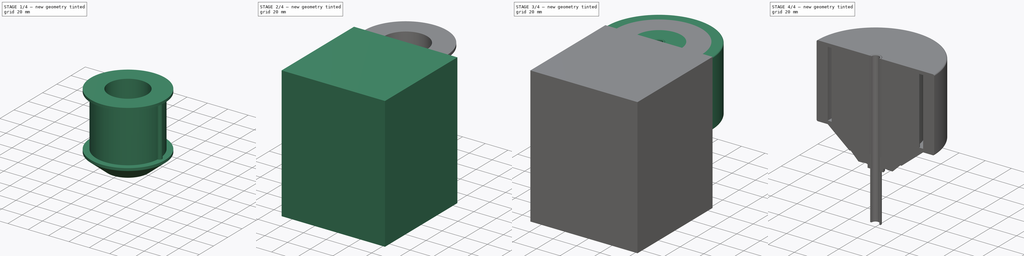
[diagram: build sequence overview — one tinted view per stage of 4, left to right]
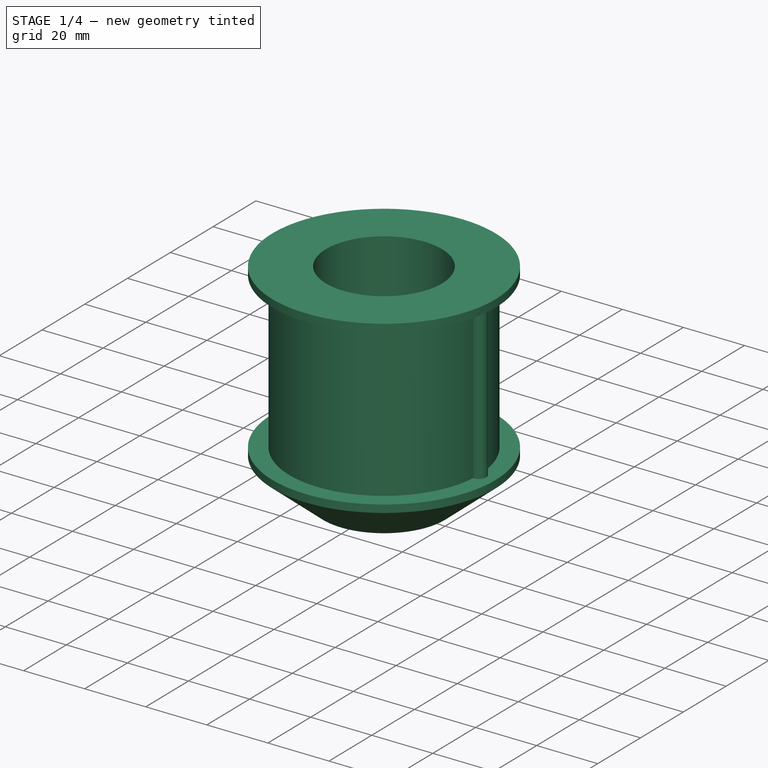
[diagram: stage 1 of 4 — iso view after this stage's code; geometry added in this stage tinted green]
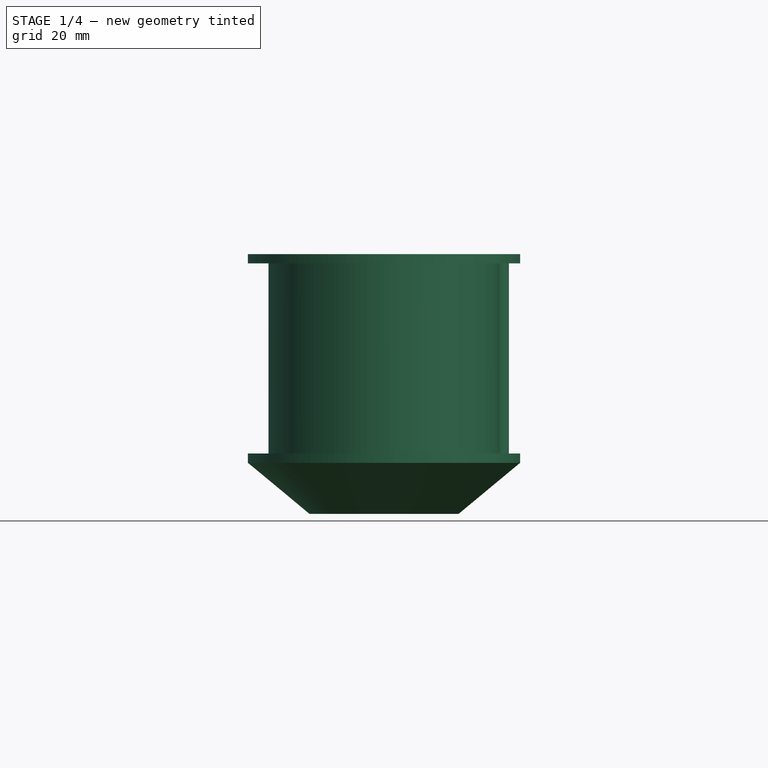
[diagram: stage 1 of 4 — front view after this stage's code; geometry added in this stage tinted green]
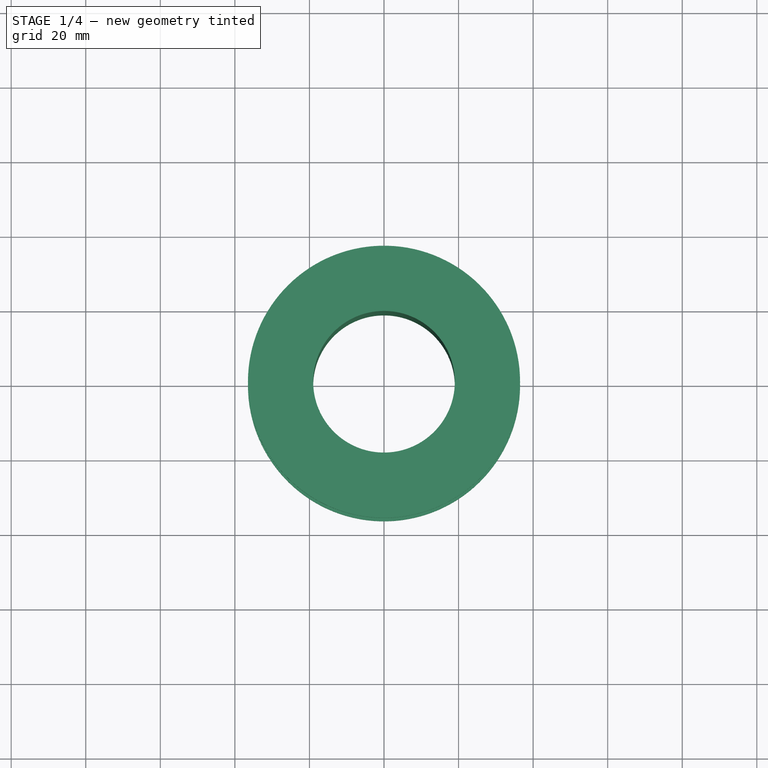
[diagram: stage 1 of 4 — top view after this stage's code; geometry added in this stage tinted green]
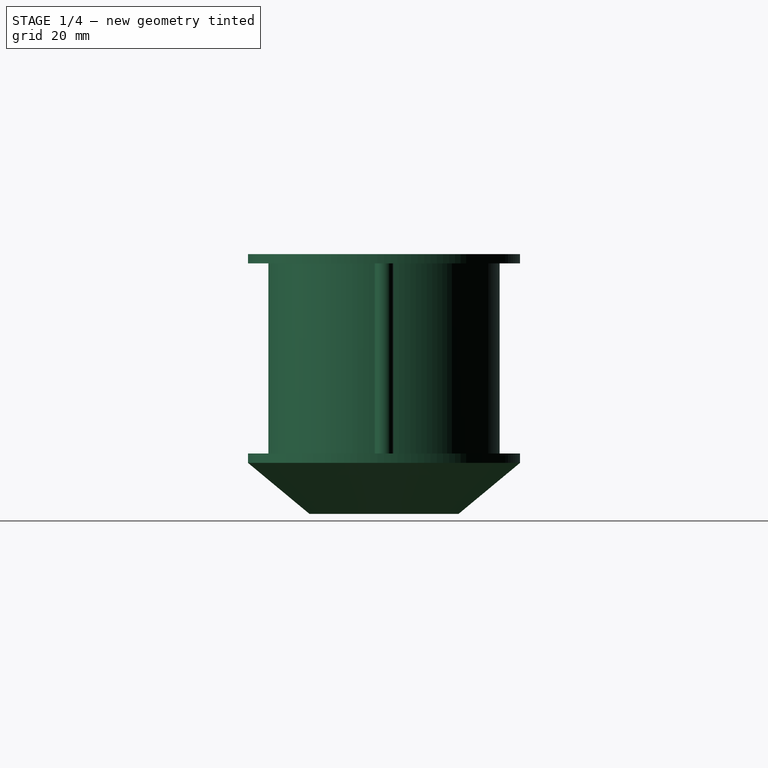
[diagram: stage 1 of 4 — right view after this stage's code; geometry added in this stage tinted green]
FCSTD DOCUMENT  (FreeCAD 0.22R37898 (Git))
Label: skateboard motor
License: All rights reserved
LicenseURL: http://en.wikipedia.org/wiki/All_rights_reserved
objects: Sketcher::SketchObject×5, App::Link×5, PartDesign::Revolution×4, PartDesign::Body×4, App::FeaturePython×1, Part::Feature×1, Part::FeaturePython×1, Part::Box×1, Part::Cut×1, PartDesign::Pad×1, PartDesign::PolarPattern×1
note: 24 computed .brp shape members not serialized (recipe doc carries the construction recipe); baked Part::Feature solids carry a one-line shape summary decoded from their .brp

FEATURE [PartDesign::Body] Body001  label="Stator"
  AllowCompound = false
  Group = -> [Sketch001,Revolution001]
  Origin = -> Origin001
  Tip = -> Revolution001
FEATURE [PartDesign::Revolution] Revolution002
  Angle = 360
  Angle2 = 60
  Axis = (0,2e-16,1)
  Base = (0,0,0)
  Placement = pos=(0,0,0) rot=(1,0,0;1.5708rad)
  Profile = -> Sketch
  ReferenceAxis = -> Sketch [V_Axis]
  Reversed = true
  Suppressed = false
  Type = 0
FEATURE [Sketcher::SketchObject] Sketch004
  AttachmentOffset = pos=(0,0,75.5) rot=(0,0,1;0rad)
  AttachmentSupport = -> [XY_Plane002]
  FullyConstrained = true
  MapMode = 5
  Placement = pos=(0,0,75.5) rot=(0,0,1;0rad)
  expr: .AttachmentOffset.Base.z = dd.Thickness
  expr: Constraints[3] = dd.WheelInnerDiameter / 2 - 5.5 mm
  sketch-geometry (2):
    g0: ArcOfCircle CenterX=0 CenterY=0 CenterZ=0 NormalX=0 NormalY=0 NormalZ=1 AngleXU=0 Radius=31 StartAngle=6.20252 EndAngle=6.36385
    g1: ArcOfCircle CenterX=31 CenterY=0 CenterZ=0 NormalX=0 NormalY=0 NormalZ=1 AngleXU=0 Radius=2.5 StartAngle=4.67206 EndAngle=7.89432
  constraints (7):
    c: Coincident(g0,g-1)
    c: Coincident(g0,g1)
    c: Coincident(g1,g0)
    c: Radius(g0) = 31
    c: Radius(g1) = 2.5
    c: PointOnObject(g1,g0)
    c: PointOnObject(g1,g-1)
FEATURE [PartDesign::Pad] Pad
  BaseFeature = -> Revolution002
  Direction = (0,0,1)
  Length = 56
  Length2 = 10
  Placement = pos=(0,0,0) rot=(1,0,0;1.5708rad)
  Profile = -> Sketch004
  ReferenceAxis = -> Sketch004 [N_Axis]
  Reversed = true
  Suppressed = false
  Type = 0
  expr: Length = dd.WheelWidth
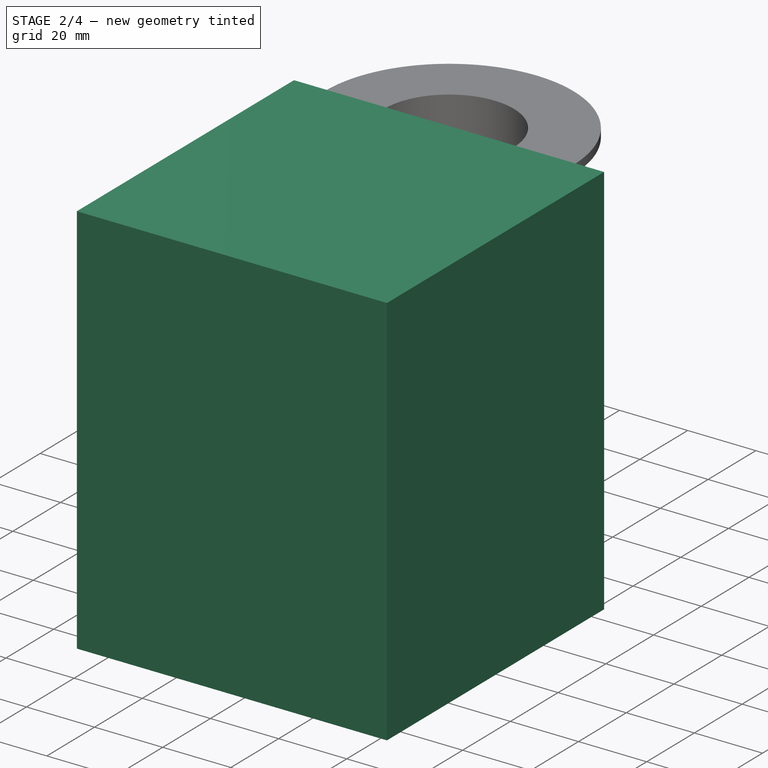
[diagram: stage 2 of 4 — iso view after this stage's code; geometry added in this stage tinted green]
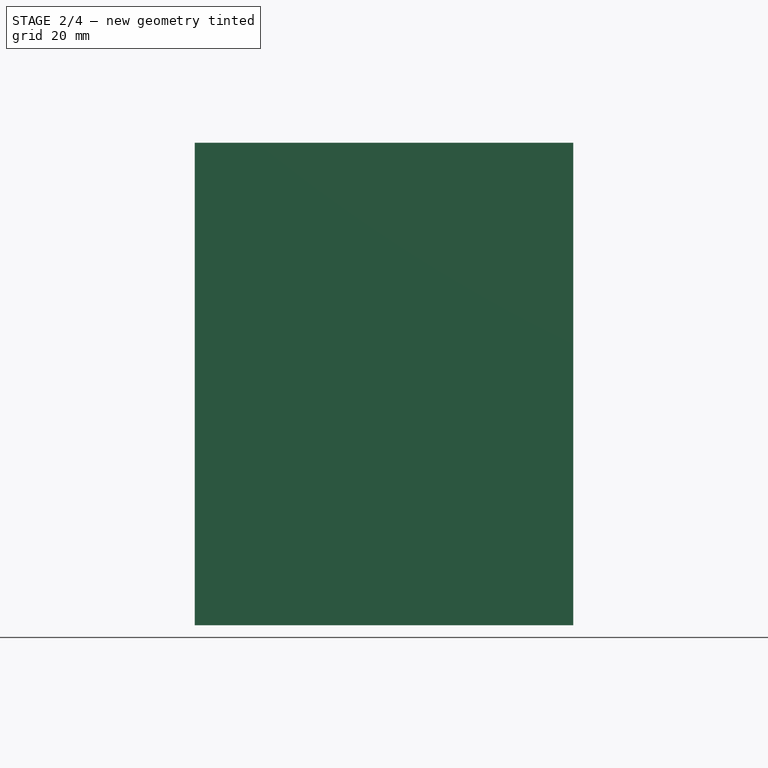
[diagram: stage 2 of 4 — front view after this stage's code; geometry added in this stage tinted green]
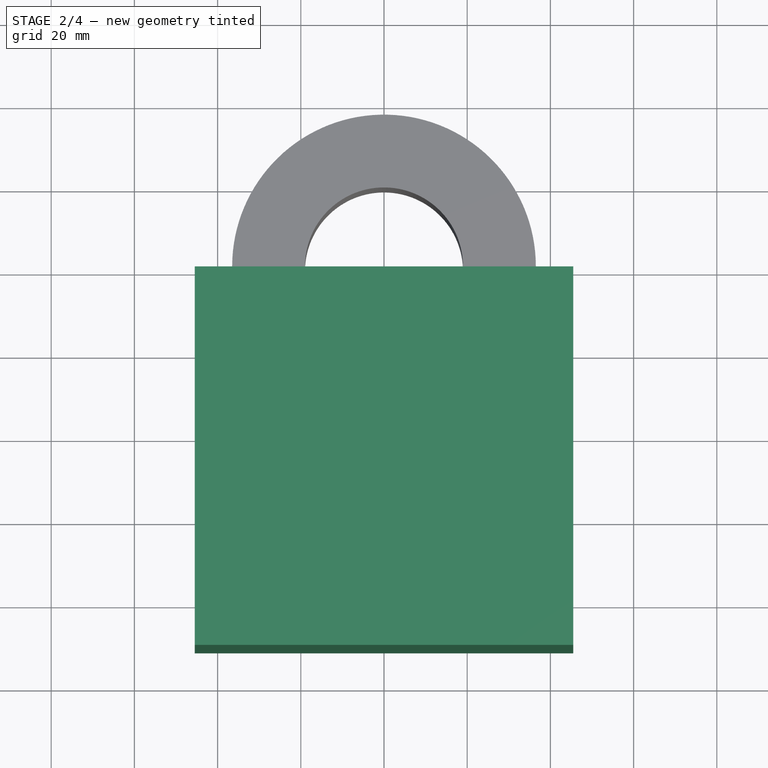
[diagram: stage 2 of 4 — top view after this stage's code; geometry added in this stage tinted green]
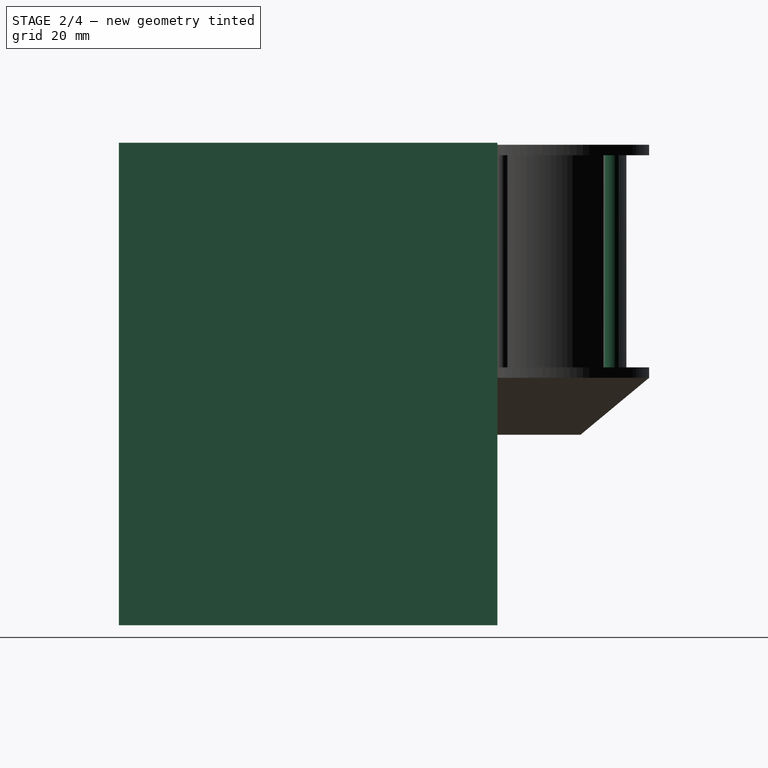
[diagram: stage 2 of 4 — right view after this stage's code; geometry added in this stage tinted green]
FEATURE [Part::Box] SectionCutBoxY
  AttacherType = Attacher::AttachEngine3D
  Height = 116
  Length = 91
  Placement = pos=(-45.5,-91,-40) rot=(0,0,1;0rad)
  Width = 91
FEATURE [PartDesign::PolarPattern] PolarPattern
  Angle = 360
  Axis = -> Sketch004 [N_Axis]
  BaseFeature = -> Pad
  Mode = 0
  Occurrences = 6
  Offset = 120
  Originals = -> [Pad]
  Placement = pos=(0,0,0) rot=(1,0,0;1.5708rad)
  Suppressed = false
  TransformMode = 0
FEATURE [PartDesign::Body] Body002  label="Outer"
  AllowCompound = false
  Group = -> [Sketch,Revolution002,Sketch004,Pad,PolarPattern]
  Origin = -> Origin002
  Tip = -> PolarPattern
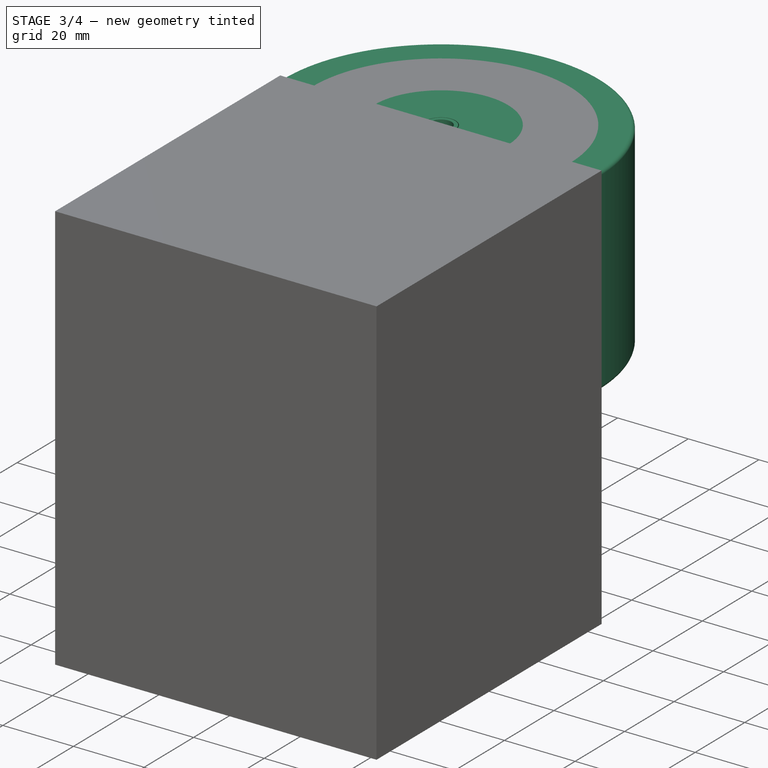
[diagram: stage 3 of 4 — iso view after this stage's code; geometry added in this stage tinted green]
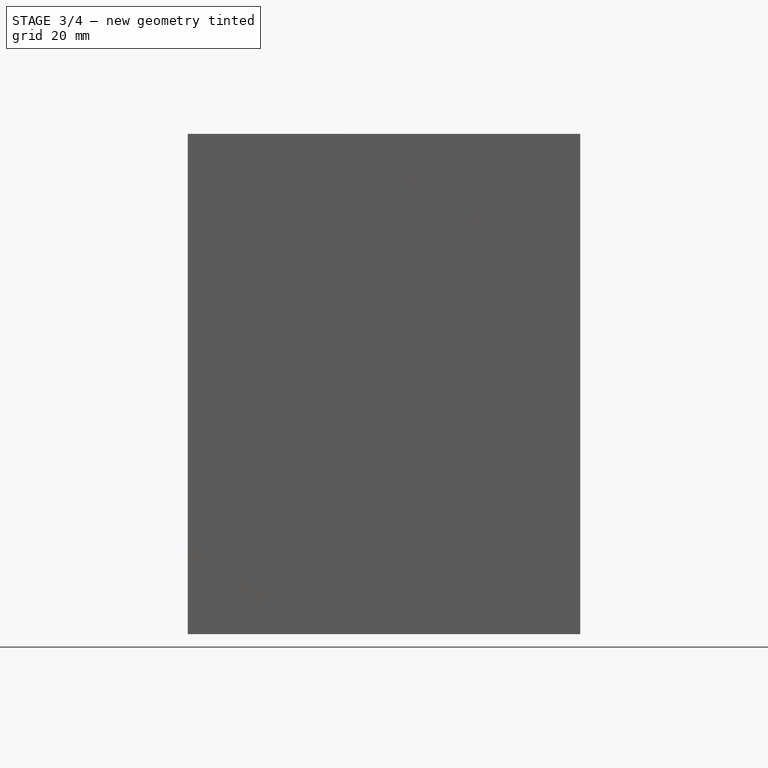
[diagram: stage 3 of 4 — front view after this stage's code; geometry added in this stage tinted green]
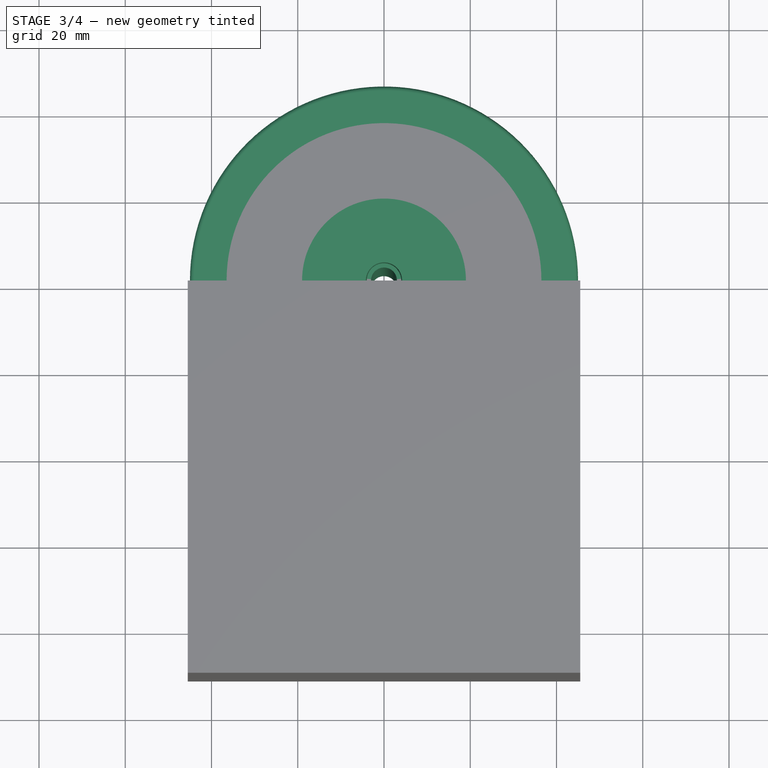
[diagram: stage 3 of 4 — top view after this stage's code; geometry added in this stage tinted green]
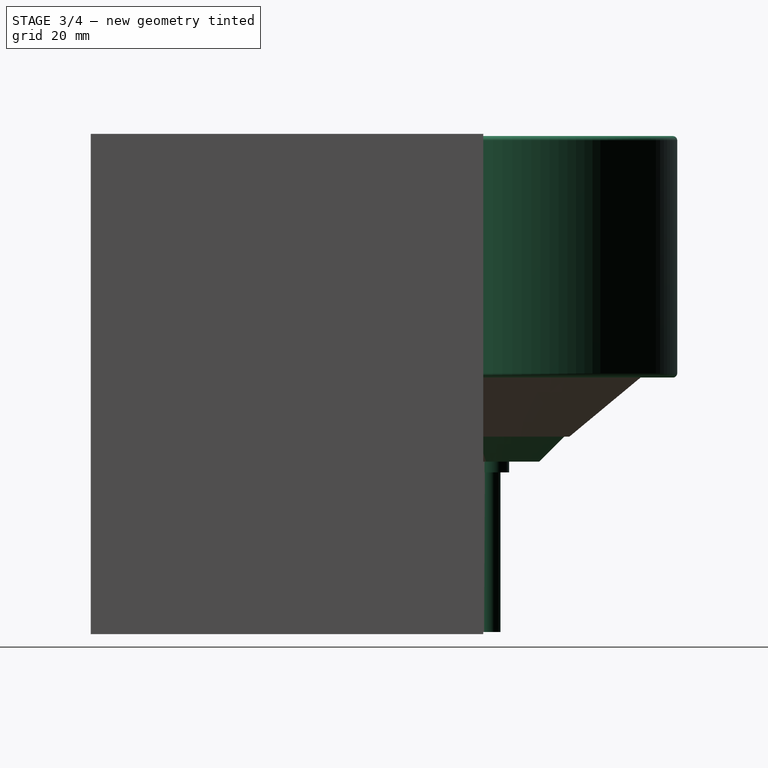
[diagram: stage 3 of 4 — right view after this stage's code; geometry added in this stage tinted green]
FEATURE [Sketcher::SketchObject] Sketch
  AttachmentSupport = -> [XZ_Plane002]
  FullyConstrained = true
  MapMode = 5
  Placement = pos=(0,0,0) rot=(1,0,0;1.5708rad)
  expr: Constraints[13] = dd.BearingDiameter / 2 + 2 mm
  expr: Constraints[5] = dd.Thickness
  expr: Constraints[6] = dd.StatorDiameter / 2
  expr: Constraints[8] = dd.WheelWidth
  expr: Constraints[9] = dd.WheelInnerDiameter / 2
  sketch-geometry (10):
    g0: LineSegment StartX=19 StartY=5.80851 StartZ=0 EndX=19 EndY=75.5 EndZ=0
    g1: LineSegment StartX=19 StartY=75.5 StartZ=0 EndX=36.5 EndY=75.5 EndZ=0
    g2: LineSegment StartX=36.5 StartY=19.5 StartZ=0 EndX=20 EndY=5.80851 EndZ=0
    g3: LineSegment StartX=20 StartY=5.80851 StartZ=0 EndX=19 EndY=5.80851 EndZ=0
    g4: LineSegment StartX=20 StartY=5.80851 StartZ=0 EndX=13 EndY=0 EndZ=0
    g5: LineSegment StartX=36.5 StartY=19.5 StartZ=0 EndX=36.5 EndY=22 EndZ=0
    g6: LineSegment StartX=36.5 StartY=22 StartZ=0 EndX=31 EndY=22 EndZ=0
    g7: LineSegment StartX=31 StartY=22 StartZ=0 EndX=31 EndY=73 EndZ=0
    g8: LineSegment StartX=31 StartY=73 StartZ=0 EndX=36.5 EndY=73 EndZ=0
    g9: LineSegment StartX=36.5 StartY=73 StartZ=0 EndX=36.5 EndY=75.5 EndZ=0
  constraints (29):
    c: Vertical(g0)
    c: Coincident(g0,g1)
    c: Horizontal(g1)
    c: Coincident(g2,g3)
    c: Coincident(g3,g0)
    c: DistanceY(g-1,g0) = 75.5
    c: DistanceX(g-1,g0) = 19
    c: Horizontal(g3)
    c: DistanceY(g2,g1) = 56
    c: DistanceX(g-1,g2) = 36.5
    c: DistanceX(g3,g3) = 1
    c: Tangent(g4,g2) = -1.5708
    c: PointOnObject(g4,g-1)
    c: DistanceX(g-1,g4) = 13
    c: Coincident(g5,g2)
    c: Vertical(g5)
    c: Coincident(g6,g5)
    c: Horizontal(g6)
    c: Coincident(g7,g6)
    c: Vertical(g7)
    c: Coincident(g8,g7)
    c: Horizontal(g8)
    c: Coincident(g9,g8)
    c: Coincident(g9,g1)
    c: Vertical(g9)
    c: DistanceX(g6,g6) = 5.5
    c: Equal(g9,g5)
    c: DistanceY(g9,g9) = 2.5
    c: Vertical(g8,g5)
FEATURE [Sketcher::SketchObject] Sketch001
  AttachmentSupport = -> [XZ_Plane001]
  FullyConstrained = true
  MapMode = 5
  Placement = pos=(0,0,0) rot=(1,0,0;1.5708rad)
  expr: Constraints[14] = dd.BearingDiameter / 2
  expr: Constraints[15] = dd.AxisDiameter / 2 + 0.2 mm
  expr: Constraints[16] = dd.Thickness
  expr: Constraints[17] = dd.StatorDiameter / 2
  sketch-geometry (7):
    g0: LineSegment StartX=19 StartY=75.5 StartZ=0 EndX=19 EndY=6 EndZ=0
    g1: LineSegment StartX=19 StartY=6 StartZ=0 EndX=13 EndY=0 EndZ=0
    g2: LineSegment StartX=13 StartY=0 StartZ=0 EndX=11 EndY=0 EndZ=0
    g3: LineSegment StartX=11 StartY=0 StartZ=0 EndX=11 EndY=6 EndZ=0
    g4: LineSegment StartX=11 StartY=6 StartZ=0 EndX=4.2 EndY=6 EndZ=0
    g5: LineSegment StartX=4.2 StartY=6 StartZ=0 EndX=4.2 EndY=75.5 EndZ=0
    g6: LineSegment StartX=4.2 StartY=75.5 StartZ=0 EndX=19 EndY=75.5 EndZ=0
  constraints (21):
    c: Vertical(g0)
    c: Coincident(g0,g1)
    c: Coincident(g1,g2)
    c: Coincident(g2,g3)
    c: Vertical(g3)
    c: Coincident(g3,g4)
    c: Horizontal(g4)
    c: Coincident(g4,g5)
    c: Vertical(g5)
    c: Coincident(g5,g6)
    c: Coincident(g6,g0)
    c: Horizontal(g6)
    c: Horizontal(g2)
    c: PointOnObject(g1,g-1)
    c: DistanceX(g-1,g2) = 11
    c: DistanceX(g-1,g4) = 4.2
    c: DistanceY(g2,g5) = 75.5
    c: DistanceX(g-1,g0) = 19
    c: DistanceY(g3,g3) = 6
    c: DistanceX(g2,g2) = 2
    c: Angle(g1,g3) = 0.785398
FEATURE [Sketcher::SketchObject] Sketch002  label="Axis sketch"
  AttachmentSupport = -> [XZ_Plane]
  FullyConstrained = true
  MapMode = 5
  Placement = pos=(0,0,0) rot=(1,0,0;1.5708rad)
  expr: Constraints[21] = dd.Thickness
  expr: Constraints[22] = dd.AxisStickout
  expr: Constraints[5] = dd.AxisDiameter / 2
  sketch-geometry (8):
    g0: LineSegment StartX=4 StartY=75.5 StartZ=0 EndX=3 EndY=75.5 EndZ=0
    g1: LineSegment StartX=3 StartY=75.5 StartZ=0 EndX=3 EndY=-39.5 EndZ=0
    g2: LineSegment StartX=3 StartY=-39.5 StartZ=0 EndX=4 EndY=-39.5 EndZ=0
    g3: LineSegment StartX=4 StartY=75.5 StartZ=0 EndX=4 EndY=0 EndZ=0
    g4: LineSegment StartX=4 StartY=0 StartZ=0 EndX=6 EndY=0 EndZ=0
    g5: LineSegment StartX=6 StartY=0 StartZ=0 EndX=6 EndY=-2.5 EndZ=0
    g6: LineSegment StartX=6 StartY=-2.5 StartZ=0 EndX=4 EndY=-2.5 EndZ=0
    g7: LineSegment StartX=4 StartY=-2.5 StartZ=0 EndX=4 EndY=-39.5 EndZ=0
  constraints (24):
    c: Coincident(g0,g1)
    c: Vertical(g1)
    c: Coincident(g1,g2)
    c: Horizontal(g2)
    c: Horizontal(g0)
    c: DistanceX(g-1,g2) = 4
    c: Coincident(g0,g3)
    c: Vertical(g3)
    c: Coincident(g3,g4)
    c: Horizontal(g4)
    c: Coincident(g4,g5)
    c: Coincident(g5,g6)
    c: Coincident(g6,g7)
    c: Coincident(g7,g2)
    c: Vertical(g7)
    c: Horizontal(g6)
    c: Equal(g4,g6)
    c: DistanceY(g5,g5) = 2.5
    c: PointOnObject(g3,g-1)
    c: Vertical(g5)
    c: DistanceX(g-1,g4) = 6
    c: DistanceY(g3,g3) = 75.5
    c: DistanceY(g2,g4) = 39.5
    c: DistanceX(g-1,g1) = 3
FEATURE [PartDesign::Revolution] Revolution  label="Axis revolution"
  Angle = 360
  Angle2 = 60
  Axis = (0,2e-16,1)
  Base = (0,0,0)
  Placement = pos=(0,0,0) rot=(1,0,0;1.5708rad)
  Profile = -> Sketch002
  ReferenceAxis = -> Sketch002 [V_Axis]
  Reversed = true
  Suppressed = false
  Type = 0
FEATURE [PartDesign::Body] Body  label="Axis"
  AllowCompound = false
  Group = -> [Sketch002,Revolution]
  Origin = -> Origin
  Tip = -> Revolution
FEATURE [App::FeaturePython] dd  # WARN: FeaturePython — macro-defined, semantics opaque (R4)
  AxisDiameter = 8
  AxisStickout = 39.5
  BearingDiameter = 22
  DynamicData = Created with DynamicData (v2.62) workbench. | This is a simple container object built | for holding custom properties.
  StatorDiameter = 38
  Thickness = 75.5
  WheelDiameter = 90
  WheelInnerDiameter = 73
  WheelWidth = 56
FEATURE [PartDesign::Revolution] Revolution001
  Angle = 360
  Angle2 = 60
  Axis = (0,2e-16,1)
  Base = (0,0,0)
  Placement = pos=(0,0,0) rot=(1,0,0;1.5708rad)
  Profile = -> Sketch001
  ReferenceAxis = -> Sketch001 [V_Axis]
  Reversed = true
  Suppressed = false
  Type = 0
FEATURE [Sketcher::SketchObject] Sketch003
  AttachmentSupport = -> [XZ_Plane003]
  FullyConstrained = true
  MapMode = 5
  Placement = pos=(0,0,0) rot=(1,0,0;1.5708rad)
  expr: Constraints[6] = dd.WheelInnerDiameter / 2
  expr: Constraints[7] = dd.WheelDiameter / 2
  expr: Constraints[8] = dd.WheelWidth
  expr: Constraints[9] = dd.Thickness
  sketch-geometry (8):
    g0: LineSegment StartX=36.5 StartY=75.5 StartZ=0 EndX=36.5 EndY=19.5 EndZ=0
    g1: LineSegment StartX=36.5 StartY=19.5 StartZ=0 EndX=44 EndY=19.5 EndZ=0
    g2: LineSegment StartX=45 StartY=20.5 StartZ=0 EndX=45 EndY=74.5 EndZ=0
    g3: LineSegment StartX=44 StartY=75.5 StartZ=0 EndX=36.5 EndY=75.5 EndZ=0
    g4: ArcOfCircle CenterX=44 CenterY=74.5 CenterZ=0 NormalX=0 NormalY=0 NormalZ=1 AngleXU=0 Radius=1 StartAngle=2.6e-15 EndAngle=1.5708
    g5: GeomPoint X=45 Y=75.5 Z=0
    g6: ArcOfCircle CenterX=44 CenterY=20.5 CenterZ=0 NormalX=0 NormalY=0 NormalZ=1 AngleXU=0 Radius=1 StartAngle=4.71239 EndAngle=6.28319
    g7: GeomPoint X=45 Y=19.5 Z=0
  constraints (20):
    c: Coincident(g0,g1)
    c: Coincident(g3,g0)
    c: Vertical(g0)
    c: Vertical(g2)
    c: Horizontal(g1)
    c: Horizontal(g3)
    c: DistanceX(g-1,g0) = 36.5
    c: DistanceX(g-1,g7) = 45
    c: DistanceY(g7,g5) = 56
    c: DistanceY(g-1,g0) = 75.5
    c: PointOnObject(g5,g2)
    c: PointOnObject(g5,g3)
    c: Tangent(g2,g4) = -1.5708
    c: Tangent(g3,g4) = -1.5708
    c: PointOnObject(g7,g1)
    c: PointOnObject(g7,g2)
    c: Tangent(g1,g6) = -1.5708
    c: Tangent(g2,g6) = -1.5708
    c: Radius(g4) = 1
    c: Equal(g4,g6)
FEATURE [PartDesign::Revolution] Revolution003
  Angle = 360
  Angle2 = 60
  Axis = (0,2e-16,1)
  Base = (0,0,0)
  Placement = pos=(0,0,0) rot=(1,0,0;1.5708rad)
  Profile = -> Sketch003
  ReferenceAxis = -> Sketch003 [V_Axis]
  Reversed = true
  Suppressed = false
  Type = 0
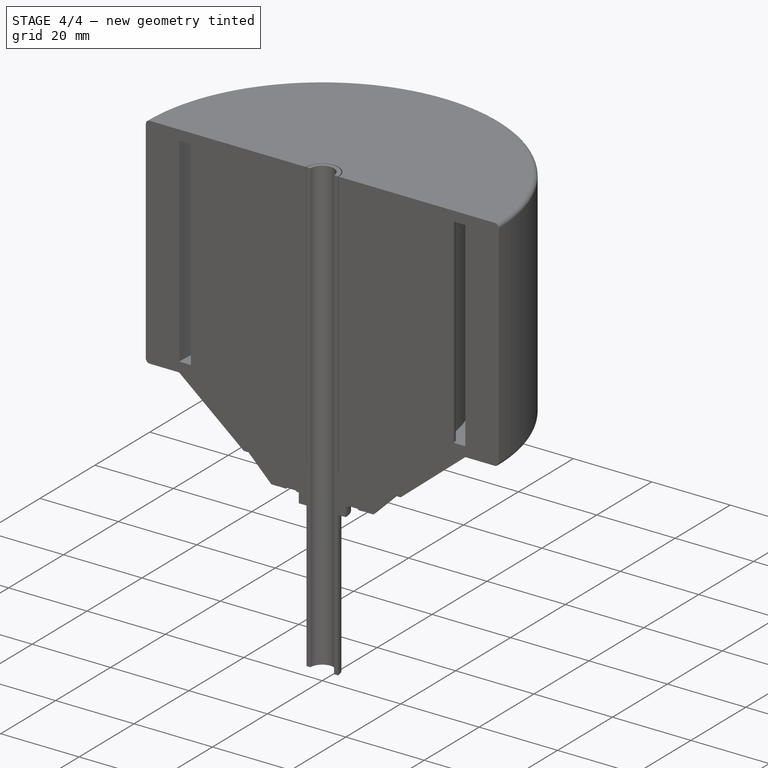
[diagram: stage 4 of 4 — iso view after this stage's code; geometry added in this stage tinted green]
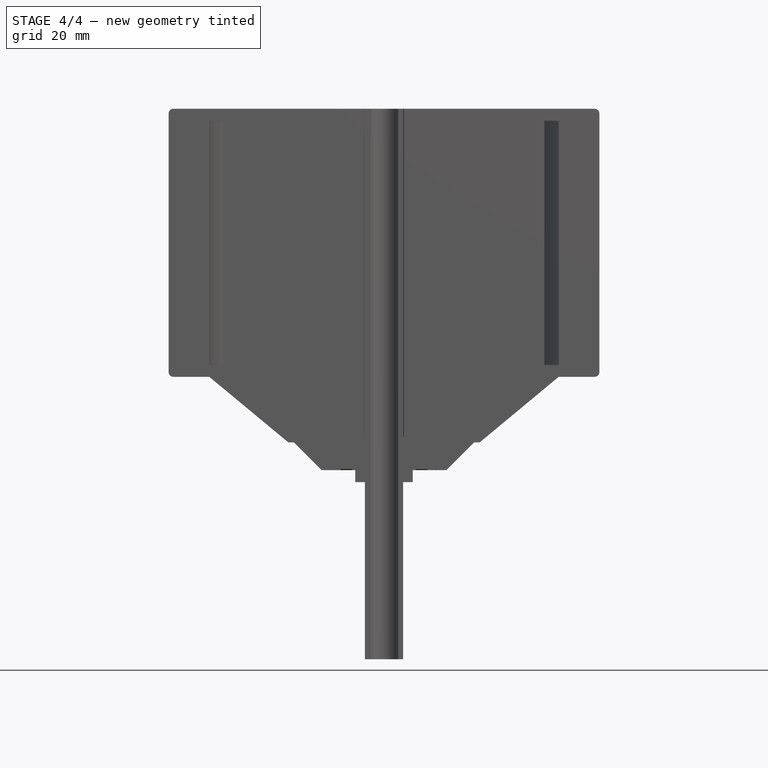
[diagram: stage 4 of 4 — front view after this stage's code; geometry added in this stage tinted green]
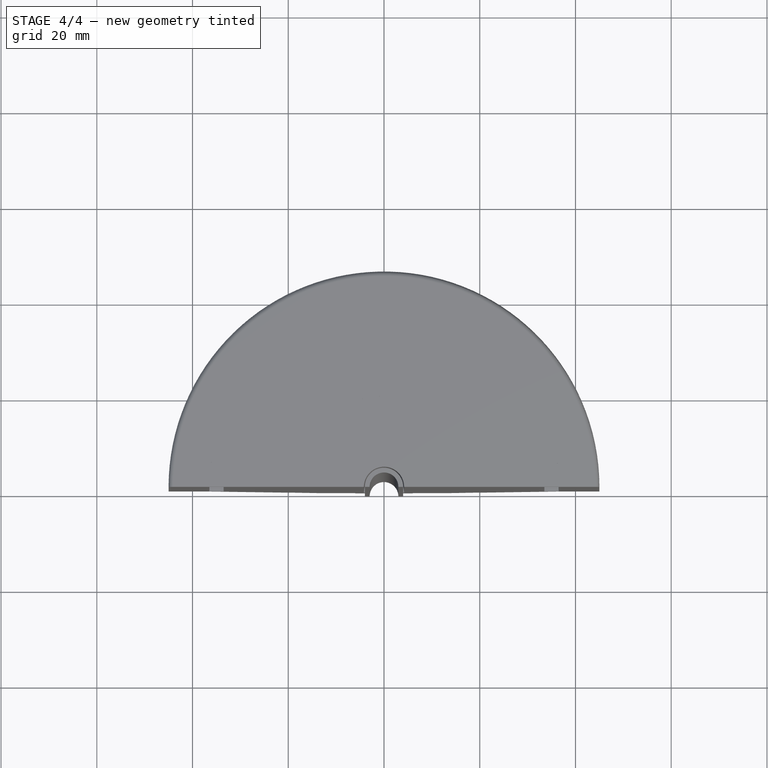
[diagram: stage 4 of 4 — top view after this stage's code; geometry added in this stage tinted green]
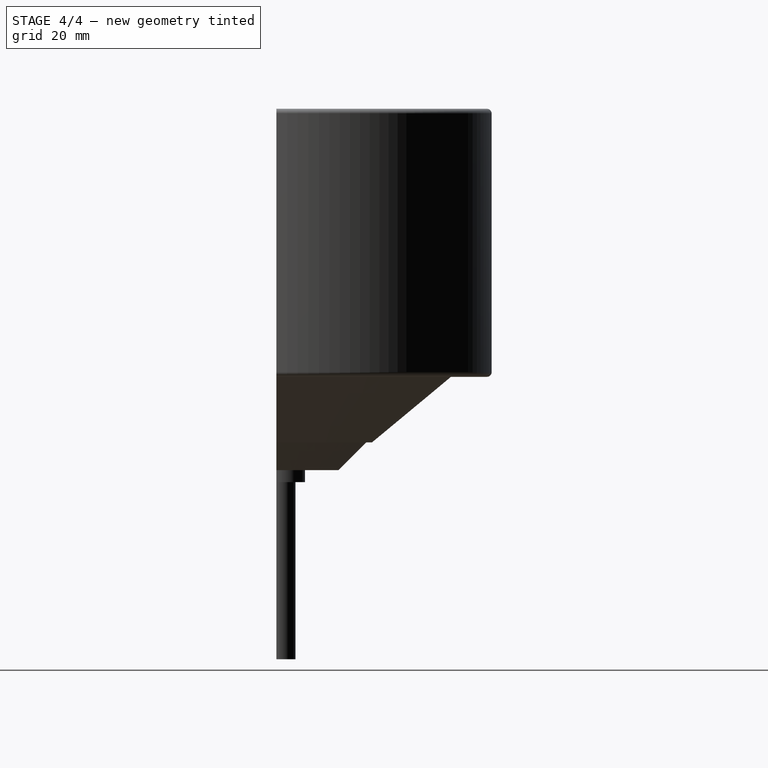
[diagram: stage 4 of 4 — right view after this stage's code; geometry added in this stage tinted green]
FEATURE [PartDesign::Body] Body003  label="Wheel"
  AllowCompound = false
  Group = -> [Sketch003,Revolution003]
  Origin = -> Origin003
  Tip = -> Revolution003
FEATURE [Part::Feature] Shape  label="Bearing"
  Placement = pos=(0,0,3.5) rot=(0,0,1;0rad)
  shape: bbox 22 x 22 x 7 mm, 14 faces (baked)
FEATURE [App::Link] Body_CutLink
  LinkTransform = true
  LinkedObject = -> Body
FEATURE [App::Link] Body001_CutLink
  LinkTransform = true
  LinkedObject = -> Body001
FEATURE [App::Link] Body002_CutLink
  LinkTransform = true
  LinkedObject = -> Body002
FEATURE [App::Link] Body003_CutLink
  LinkTransform = true
  LinkedObject = -> Body003
FEATURE [App::Link] Shape_CutLink
  LinkTransform = true
  LinkedObject = -> Shape
FEATURE [Part::FeaturePython] SectionCutCompound  # WARN: FeaturePython — macro-defined, semantics opaque (R4)
  Mode = 0
  Objects = -> [Body_CutLink,Body001_CutLink,Body002_CutLink,Body003_CutLink,Shape_CutLink]
  Tolerance = 0
FEATURE [Part::Cut] SectionCutY
  Base = -> SectionCutCompound
  Tool = -> SectionCutBoxY
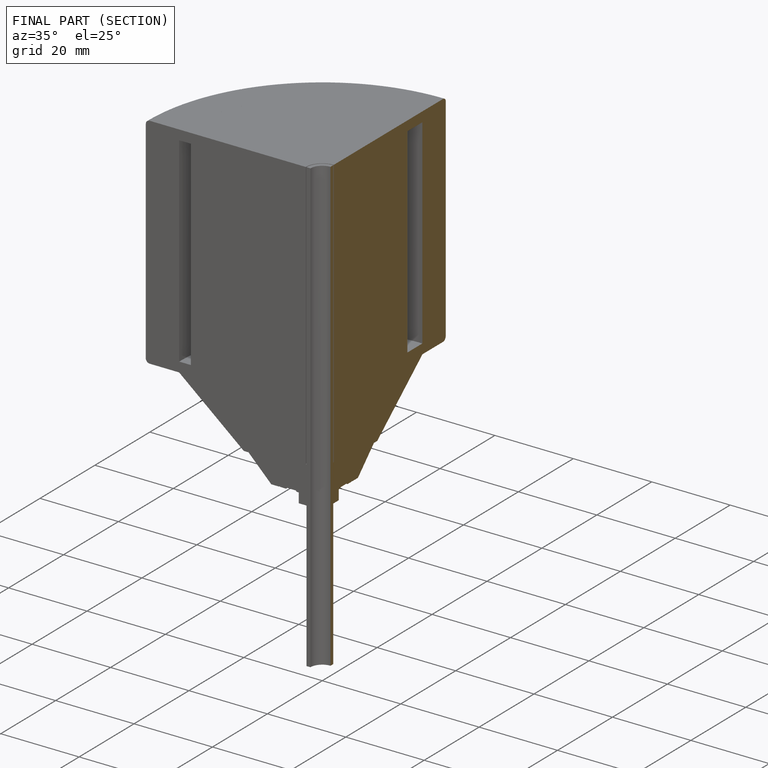
[diagram: finished part — half-section view (interior)]
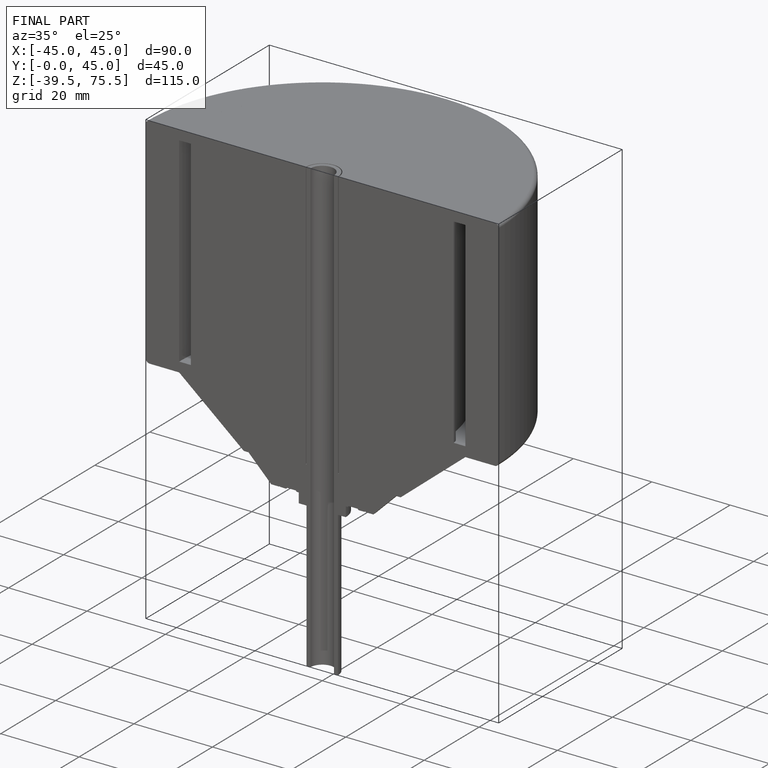
[diagram: finished part — iso view with bounding-box wireframe]
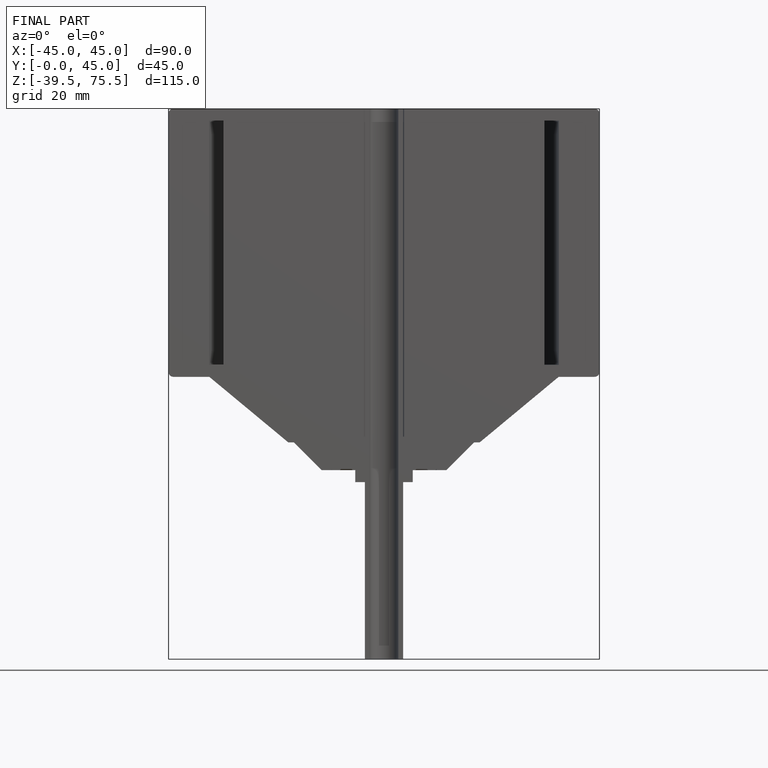
[diagram: finished part — front view with bounding-box wireframe]
